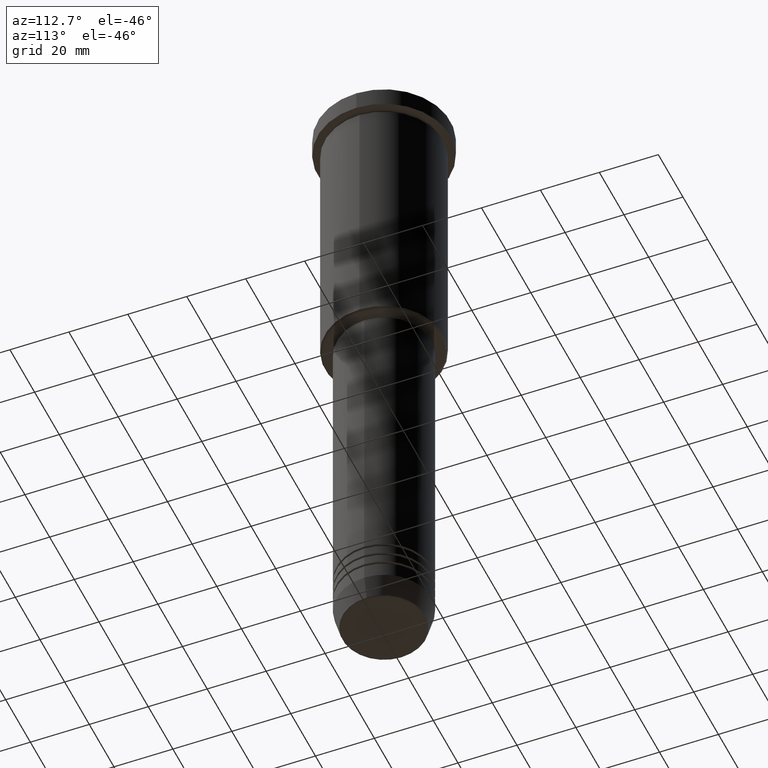
[diagram: clean part render]
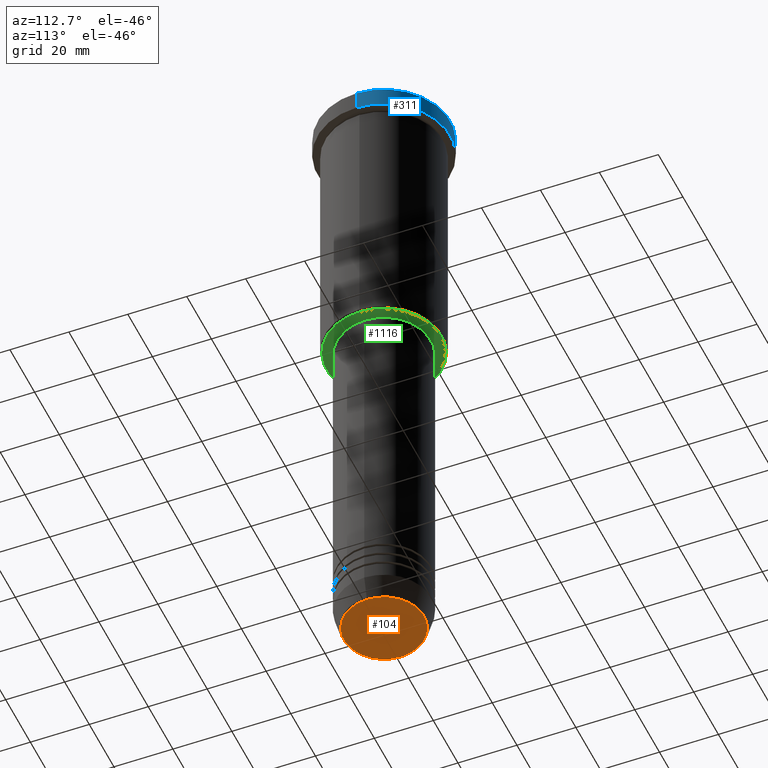
[diagram: same view with three faces highlighted in distinct colors, each labeled with its STEP entity id]
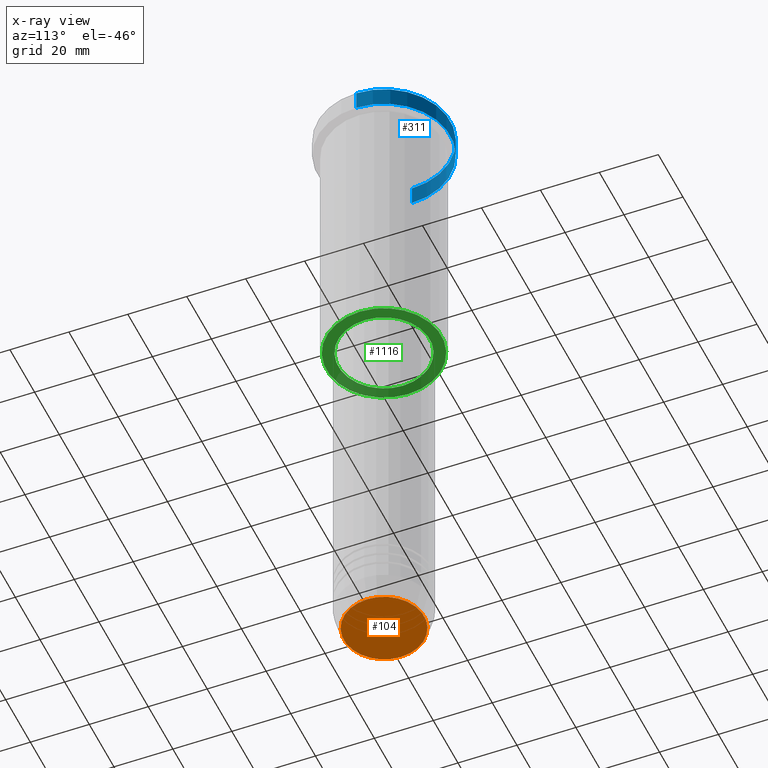
[diagram: x-ray of the same camera — body ghosted, the three highlighted faces saturated]
A machine part, auxiliary view with three faces highlighted in distinct colors.
The next image is the same camera in x-ray (body ghosted, the three faces saturated) — at least one of them is partly hidden behind the body in this view.
Their STEP definitions:

[orange] entity #104 — the highlighted planar face has unit normal (0, -0, 1).
#104 = ADVANCED_FACE ( 'NONE', ( #247 ), #878, .F. ) ;
#143 = DIRECTION ( 'NONE',  ( 0.000000000000000000, -0.000000000000000000, 1.000000000000000000 ) ) ;
#182 = AXIS2_PLACEMENT_3D ( 'NONE', #1129, #143, #784 ) ;
#183 = DIRECTION ( 'NONE',  ( 1.000000000000000000, 0.000000000000000000, 0.000000000000000000 ) ) ;
#247 = FACE_OUTER_BOUND ( 'NONE', #905, .T. ) ;
#255 = DIRECTION ( 'NONE',  ( 1.000000000000000000, 0.000000000000000000, 0.000000000000000000 ) ) ;
#264 = CARTESIAN_POINT ( 'NONE',  ( 0.000000000000000000, 0.000000000000000000, -219.9999999999999716 ) ) ;
#287 = AXIS2_PLACEMENT_3D ( 'NONE', #264, #896, #183 ) ;
#294 = EDGE_CURVE ( 'NONE', #520, #400, #696, .T. ) ;
#400 = VERTEX_POINT ( 'NONE', #833 ) ;
#494 = ORIENTED_EDGE ( 'NONE', *, *, #294, .T. ) ;
#520 = VERTEX_POINT ( 'NONE', #944 ) ;
#529 = DIRECTION ( 'NONE',  ( 0.000000000000000000, 0.000000000000000000, -1.000000000000000000 ) ) ;
#696 = CIRCLE ( 'NONE', #287, 13.60671756277710109 ) ;
#729 = ORIENTED_EDGE ( 'NONE', *, *, #752, .T. ) ;
#745 = CIRCLE ( 'NONE', #874, 13.60671756277710109 ) ;
#752 = EDGE_CURVE ( 'NONE', #400, #520, #745, .T. ) ;
#784 = DIRECTION ( 'NONE',  ( 1.000000000000000000, 0.000000000000000000, 0.000000000000000000 ) ) ;
#833 = CARTESIAN_POINT ( 'NONE',  ( 13.60671756277710109, 0.000000000000000000, -219.9999999999999716 ) ) ;
#874 = AXIS2_PLACEMENT_3D ( 'NONE', #1065, #529, #255 ) ;
#878 = PLANE ( 'NONE',  #182 ) ;
#896 = DIRECTION ( 'NONE',  ( 0.000000000000000000, 0.000000000000000000, -1.000000000000000000 ) ) ;
#905 = EDGE_LOOP ( 'NONE', ( #729, #494 ) ) ;
#944 = CARTESIAN_POINT ( 'NONE',  ( -13.60671756277710109, 1.695915260300172047E-15, -219.9999999999999716 ) ) ;
#1065 = CARTESIAN_POINT ( 'NONE',  ( 0.000000000000000000, 0.000000000000000000, -219.9999999999999716 ) ) ;
#1129 = CARTESIAN_POINT ( 'NONE',  ( 0.000000000000000000, 0.000000000000000000, -219.9999999999999716 ) ) ;

[blue] entity #311 — the highlighted cylindrical surface (partial cylindrical patch) has radius 22.5 mm, axis along (-0, -0, 1).
#48 = DIRECTION ( 'NONE',  ( 1.000000000000000000, 0.000000000000000000, 0.000000000000000000 ) ) ;
#76 = CARTESIAN_POINT ( 'NONE',  ( 0.000000000000000000, 0.000000000000000000, 0.000000000000000000 ) ) ;
#98 = DIRECTION ( 'NONE',  ( -0.000000000000000000, -0.000000000000000000, 1.000000000000000000 ) ) ;
#147 = VERTEX_POINT ( 'NONE', #513 ) ;
#262 = VERTEX_POINT ( 'NONE', #539 ) ;
#272 = ORIENTED_EDGE ( 'NONE', *, *, #1145, .F. ) ;
#311 = ADVANCED_FACE ( 'NONE', ( #1174 ), #343, .T. ) ;
#312 = DIRECTION ( 'NONE',  ( -0.000000000000000000, -0.000000000000000000, 1.000000000000000000 ) ) ;
#336 = VERTEX_POINT ( 'NONE', #445 ) ;
#337 = CARTESIAN_POINT ( 'NONE',  ( 0.000000000000000000, 0.000000000000000000, -0.5000000000000213163 ) ) ;
#343 = CYLINDRICAL_SURFACE ( 'NONE', #583, 22.50000000000000000 ) ;
#432 = CARTESIAN_POINT ( 'NONE',  ( -22.50000000000000000, 2.755455298081544778E-15, 0.000000000000000000 ) ) ;
#445 = CARTESIAN_POINT ( 'NONE',  ( -22.50000000000000000, 2.755455298081544778E-15, -0.5000000000000213163 ) ) ;
#513 = CARTESIAN_POINT ( 'NONE',  ( -22.50000000000000000, 2.755455298081544778E-15, -6.999999999999995559 ) ) ;
#539 = CARTESIAN_POINT ( 'NONE',  ( 22.50000000000000000, 0.000000000000000000, -0.5000000000000213163 ) ) ;
#558 = DIRECTION ( 'NONE',  ( 1.000000000000000000, 0.000000000000000000, 0.000000000000000000 ) ) ;
#574 = EDGE_CURVE ( 'NONE', #147, #336, #882, .T. ) ;
#583 = AXIS2_PLACEMENT_3D ( 'NONE', #76, #981, #558 ) ;
#592 = AXIS2_PLACEMENT_3D ( 'NONE', #870, #312, #48 ) ;
#624 = EDGE_CURVE ( 'NONE', #714, #147, #663, .T. ) ;
#633 = ORIENTED_EDGE ( 'NONE', *, *, #1037, .T. ) ;
#649 = ORIENTED_EDGE ( 'NONE', *, *, #574, .T. ) ;
#663 = CIRCLE ( 'NONE', #592, 22.50000000000000000 ) ;
#714 = VERTEX_POINT ( 'NONE', #1173 ) ;
#755 = EDGE_LOOP ( 'NONE', ( #1034, #649, #633, #272 ) ) ;
#798 = DIRECTION ( 'NONE',  ( -0.000000000000000000, -0.000000000000000000, 1.000000000000000000 ) ) ;
#807 = DIRECTION ( 'NONE',  ( 0.000000000000000000, 0.000000000000000000, -1.000000000000000000 ) ) ;
#832 = CARTESIAN_POINT ( 'NONE',  ( 22.50000000000000000, 0.000000000000000000, 0.000000000000000000 ) ) ;
#846 = AXIS2_PLACEMENT_3D ( 'NONE', #337, #807, #1070 ) ;
#870 = CARTESIAN_POINT ( 'NONE',  ( 0.000000000000000000, 0.000000000000000000, -6.999999999999995559 ) ) ;
#882 = LINE ( 'NONE', #432, #943 ) ;
#916 = LINE ( 'NONE', #832, #1083 ) ;
#943 = VECTOR ( 'NONE', #798, 1000.000000000000000 ) ;
#972 = CIRCLE ( 'NONE', #846, 22.50000000000000000 ) ;
#981 = DIRECTION ( 'NONE',  ( -0.000000000000000000, -0.000000000000000000, 1.000000000000000000 ) ) ;
#1034 = ORIENTED_EDGE ( 'NONE', *, *, #624, .T. ) ;
#1037 = EDGE_CURVE ( 'NONE', #336, #262, #972, .T. ) ;
#1070 = DIRECTION ( 'NONE',  ( 1.000000000000000000, 0.000000000000000000, 0.000000000000000000 ) ) ;
#1083 = VECTOR ( 'NONE', #98, 1000.000000000000000 ) ;
#1145 = EDGE_CURVE ( 'NONE', #714, #262, #916, .T. ) ;
#1173 = CARTESIAN_POINT ( 'NONE',  ( 22.50000000000000000, 0.000000000000000000, -6.999999999999995559 ) ) ;
#1174 = FACE_OUTER_BOUND ( 'NONE', #755, .T. ) ;

[green] entity #1116 — the highlighted planar face has unit normal (0, 0, -1).
#2 = CARTESIAN_POINT ( 'NONE',  ( 0.000000000000000000, 20.00000000000000355, -96.00000000000000000 ) ) ;
#13 = DIRECTION ( 'NONE',  ( 1.000000000000000000, 0.000000000000000000, 0.000000000000000000 ) ) ;
#31 = ORIENTED_EDGE ( 'NONE', *, *, #1164, .T. ) ;
#49 = DIRECTION ( 'NONE',  ( 0.000000000000000000, 0.000000000000000000, -1.000000000000000000 ) ) ;
#69 = CARTESIAN_POINT ( 'NONE',  ( 0.000000000000000000, 0.000000000000000000, -96.00000000000000000 ) ) ;
#82 = CIRCLE ( 'NONE', #339, 15.50000000000000000 ) ;
#125 = EDGE_CURVE ( 'NONE', #474, #1152, #563, .T. ) ;
#170 = CARTESIAN_POINT ( 'NONE',  ( 0.000000000000000000, 0.000000000000000000, -96.00000000000000000 ) ) ;
#177 = PLANE ( 'NONE',  #599 ) ;
#193 = CARTESIAN_POINT ( 'NONE',  ( 0.000000000000000000, 0.000000000000000000, -96.00000000000000000 ) ) ;
#203 = ORIENTED_EDGE ( 'NONE', *, *, #960, .T. ) ;
#237 = VERTEX_POINT ( 'NONE', #742 ) ;
#277 = FACE_BOUND ( 'NONE', #923, .T. ) ;
#291 = CARTESIAN_POINT ( 'NONE',  ( 0.000000000000000000, 0.000000000000000000, -96.00000000000000000 ) ) ;
#339 = AXIS2_PLACEMENT_3D ( 'NONE', #291, #852, #857 ) ;
#365 = DIRECTION ( 'NONE',  ( -0.000000000000000000, -0.000000000000000000, 1.000000000000000000 ) ) ;
#366 = EDGE_LOOP ( 'NONE', ( #872, #589 ) ) ;
#381 = AXIS2_PLACEMENT_3D ( 'NONE', #170, #959, #715 ) ;
#404 = AXIS2_PLACEMENT_3D ( 'NONE', #193, #365, #13 ) ;
#420 = DIRECTION ( 'NONE',  ( -1.000000000000000000, 0.000000000000000000, 0.000000000000000000 ) ) ;
#474 = VERTEX_POINT ( 'NONE', #771 ) ;
#550 = CARTESIAN_POINT ( 'NONE',  ( 15.50000000000000000, 0.000000000000000000, -96.00000000000000000 ) ) ;
#563 = CIRCLE ( 'NONE', #739, 19.49999999999996092 ) ;
#589 = ORIENTED_EDGE ( 'NONE', *, *, #1072, .T. ) ;
#599 = AXIS2_PLACEMENT_3D ( 'NONE', #2, #650, #1097 ) ;
#646 = CARTESIAN_POINT ( 'NONE',  ( -19.49999999999996092, 2.418677428316020359E-15, -96.00000000000000000 ) ) ;
#650 = DIRECTION ( 'NONE',  ( 0.000000000000000000, 0.000000000000000000, -1.000000000000000000 ) ) ;
#705 = VERTEX_POINT ( 'NONE', #550 ) ;
#715 = DIRECTION ( 'NONE',  ( -1.000000000000000000, 0.000000000000000000, 0.000000000000000000 ) ) ;
#739 = AXIS2_PLACEMENT_3D ( 'NONE', #69, #49, #420 ) ;
#742 = CARTESIAN_POINT ( 'NONE',  ( -15.50000000000000000, 1.898202538678397557E-15, -96.00000000000000000 ) ) ;
#771 = CARTESIAN_POINT ( 'NONE',  ( 19.49999999999996092, 0.000000000000000000, -96.00000000000000000 ) ) ;
#789 = CIRCLE ( 'NONE', #381, 19.49999999999996092 ) ;
#852 = DIRECTION ( 'NONE',  ( -0.000000000000000000, -0.000000000000000000, 1.000000000000000000 ) ) ;
#857 = DIRECTION ( 'NONE',  ( 1.000000000000000000, 0.000000000000000000, 0.000000000000000000 ) ) ;
#872 = ORIENTED_EDGE ( 'NONE', *, *, #125, .T. ) ;
#901 = CIRCLE ( 'NONE', #404, 15.50000000000000000 ) ;
#923 = EDGE_LOOP ( 'NONE', ( #31, #203 ) ) ;
#959 = DIRECTION ( 'NONE',  ( 0.000000000000000000, 0.000000000000000000, -1.000000000000000000 ) ) ;
#960 = EDGE_CURVE ( 'NONE', #237, #705, #82, .T. ) ;
#1072 = EDGE_CURVE ( 'NONE', #1152, #474, #789, .T. ) ;
#1094 = FACE_OUTER_BOUND ( 'NONE', #366, .T. ) ;
#1097 = DIRECTION ( 'NONE',  ( -1.000000000000000000, 0.000000000000000000, -0.000000000000000000 ) ) ;
#1116 = ADVANCED_FACE ( 'NONE', ( #1094, #277 ), #177, .T. ) ;
#1152 = VERTEX_POINT ( 'NONE', #646 ) ;
#1164 = EDGE_CURVE ( 'NONE', #705, #237, #901, .T. ) ;